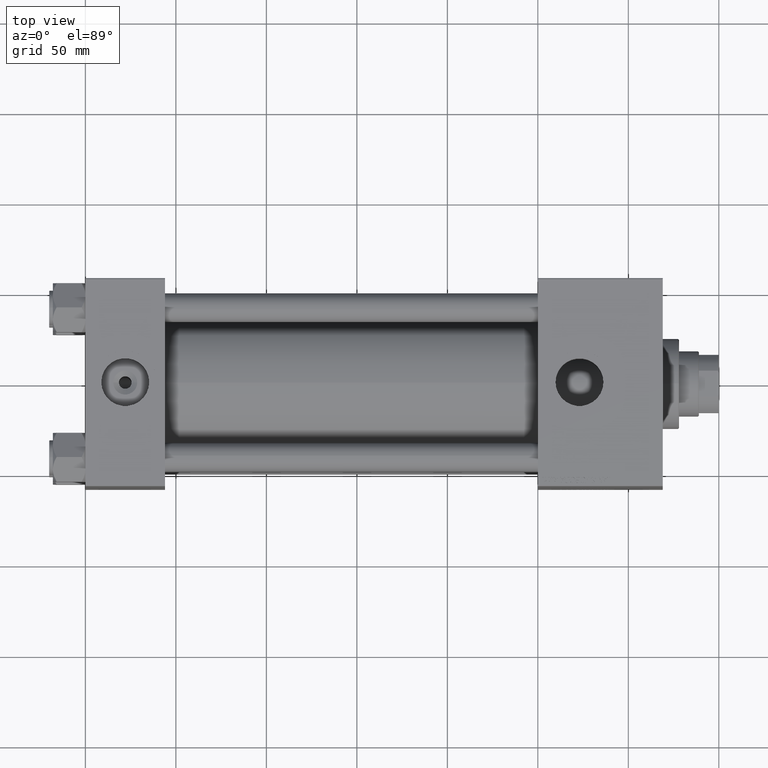
[diagram: clean part render]
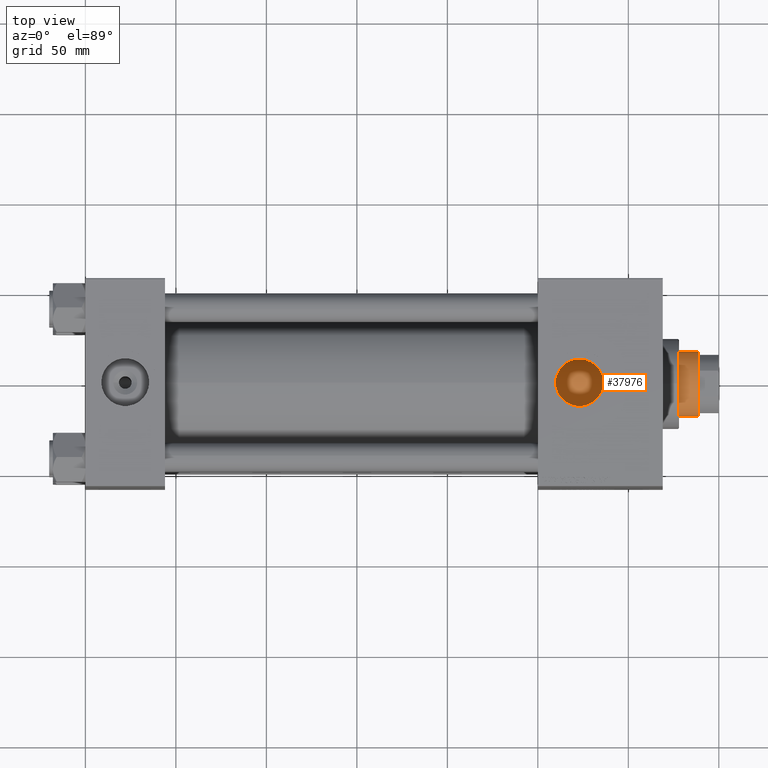
[diagram: same view with one face highlighted and labeled with its STEP entity id]
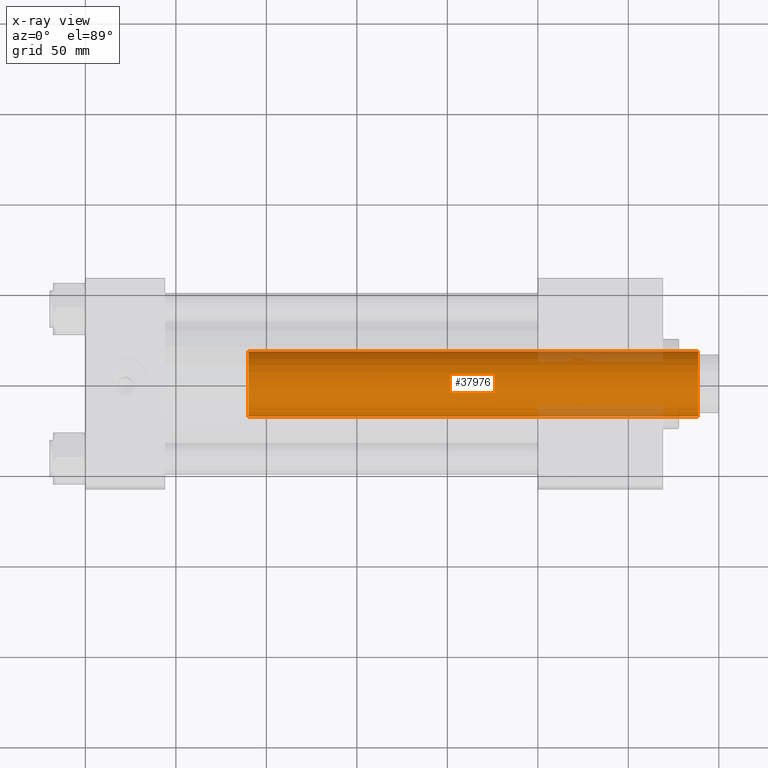
[diagram: x-ray of the same camera — body ghosted, the highlighted face saturated]
A machine part, top view. The second image highlights one B-rep face of the part: STEP entity #37976.
The next image is the same camera in x-ray: the body ghosted, the highlighted face saturated — about 9% of this face is hidden behind the body in this view.
In plain terms, the highlighted cylindrical surface (edge-blend (fillet) strip) has radius 18 mm, axis along (-1, 0, 0).
Its self-contained STEP definition (entity closure, byte-faithful):
#1864 = CARTESIAN_POINT ( 'NONE',  ( -18.00000000000000000, 0.000000000000000000, 294.5000000000000568 ) ) ;
#1894 = VERTEX_POINT ( 'NONE', #32821 ) ;
#3672 = CIRCLE ( 'NONE', #45525, 18.00000000000000000 ) ;
#4838 = DIRECTION ( 'NONE',  ( -0.000000000000000000, -0.000000000000000000, -1.000000000000000000 ) ) ;
#5440 = EDGE_CURVE ( 'NONE', #1894, #46642, #15587, .T. ) ;
#5523 = DIRECTION ( 'NONE',  ( 1.000000000000000000, 0.000000000000000000, 0.000000000000000000 ) ) ;
#6810 = DIRECTION ( 'NONE',  ( -0.000000000000000000, -0.000000000000000000, -1.000000000000000000 ) ) ;
#6964 = VECTOR ( 'NONE', #6810, 1000.000000000000000 ) ;
#15587 = CIRCLE ( 'NONE', #18883, 18.00000000000000000 ) ;
#16451 = CYLINDRICAL_SURFACE ( 'NONE', #37263, 18.00000000000000000 ) ;
#16712 = EDGE_CURVE ( 'NONE', #46642, #34681, #27353, .T. ) ;
#17535 = ORIENTED_EDGE ( 'NONE', *, *, #45081, .F. ) ;
#18883 = AXIS2_PLACEMENT_3D ( 'NONE', #21442, #45325, #5523 ) ;
#19799 = CARTESIAN_POINT ( 'NONE',  ( 0.000000000000000000, 0.000000000000000000, 295.0000000000000000 ) ) ;
#20777 = ORIENTED_EDGE ( 'NONE', *, *, #5440, .T. ) ;
#21442 = CARTESIAN_POINT ( 'NONE',  ( 0.000000000000000000, 0.000000000000000000, 294.5000000000000568 ) ) ;
#22998 = ORIENTED_EDGE ( 'NONE', *, *, #16712, .T. ) ;
#27353 = LINE ( 'NONE', #46883, #6964 ) ;
#28471 = LINE ( 'NONE', #32830, #41601 ) ;
#31864 = DIRECTION ( 'NONE',  ( -0.000000000000000000, -0.000000000000000000, -1.000000000000000000 ) ) ;
#32122 = DIRECTION ( 'NONE',  ( -1.000000000000000000, 0.000000000000000000, 0.000000000000000000 ) ) ;
#32821 = CARTESIAN_POINT ( 'NONE',  ( 18.00000000000000000, 2.204364238465235428E-15, 294.5000000000000568 ) ) ;
#32830 = CARTESIAN_POINT ( 'NONE',  ( 18.00000000000000000, 2.204364238465235428E-15, 295.0000000000000000 ) ) ;
#34681 = VERTEX_POINT ( 'NONE', #46019 ) ;
#35950 = ORIENTED_EDGE ( 'NONE', *, *, #39629, .T. ) ;
#36411 = CARTESIAN_POINT ( 'NONE',  ( 18.00000000000000000, 2.204364238465235428E-15, 46.00000000000000000 ) ) ;
#37263 = AXIS2_PLACEMENT_3D ( 'NONE', #19799, #31864, #32122 ) ;
#37976 = ADVANCED_FACE ( 'NONE', ( #45766 ), #16451, .T. ) ;
#39629 = EDGE_CURVE ( 'NONE', #34681, #44278, #3672, .T. ) ;
#39974 = DIRECTION ( 'NONE',  ( 1.000000000000000000, 0.000000000000000000, 0.000000000000000000 ) ) ;
#41601 = VECTOR ( 'NONE', #4838, 1000.000000000000000 ) ;
#43056 = DIRECTION ( 'NONE',  ( 0.000000000000000000, 0.000000000000000000, 1.000000000000000000 ) ) ;
#43564 = EDGE_LOOP ( 'NONE', ( #17535, #20777, #22998, #35950 ) ) ;
#44278 = VERTEX_POINT ( 'NONE', #36411 ) ;
#45081 = EDGE_CURVE ( 'NONE', #1894, #44278, #28471, .T. ) ;
#45325 = DIRECTION ( 'NONE',  ( 0.000000000000000000, 0.000000000000000000, -1.000000000000000000 ) ) ;
#45525 = AXIS2_PLACEMENT_3D ( 'NONE', #50780, #43056, #39974 ) ;
#45766 = FACE_OUTER_BOUND ( 'NONE', #43564, .T. ) ;
#46019 = CARTESIAN_POINT ( 'NONE',  ( -18.00000000000000000, 0.000000000000000000, 46.00000000000000000 ) ) ;
#46642 = VERTEX_POINT ( 'NONE', #1864 ) ;
#46883 = CARTESIAN_POINT ( 'NONE',  ( -18.00000000000000000, 0.000000000000000000, 295.0000000000000000 ) ) ;
#50780 = CARTESIAN_POINT ( 'NONE',  ( 0.000000000000000000, 0.000000000000000000, 46.00000000000000000 ) ) ;